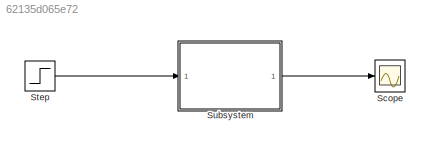
MODEL slx_62135d065e72
KIND model
CONFIG AbsTol = auto
CONFIG EnableMultiTasking = off
CONFIG FixedStep = auto
CONFIG MaxStep = auto
CONFIG MinStep = auto
CONFIG PostLoadFcn = a0=1\na1=2\na2=-1\nb1=1\nb2=-1
CONFIG RelTol = 1e-3
CONFIG SampleTimeConstraint = Unconstrained
CONFIG Solver = VariableStepAuto
CONFIG SolverName = VariableStepAuto
CONFIG StartTime = 0.0
CONFIG StopTime = 10.0
BLOCK [Scope] Scope
  Floating = off
  NumInputPorts = 1
  Ports = [1]
  ScopeSpecificationString = Simulink.scopes.TimeScopeBlockCfg('CurrentConfiguration', extmgr.ConfigurationSet(extmgr.Configuration('Core','General UI',true),extmgr.Configuration('Core','Source UI',true),extmgr.Configuration('Sources','WiredSimulink',true),extmgr.Configuration('Visuals','Time Domain',true,'SerializedDisplays',{struct('MinYLimReal','-0.5','MaxYLimReal','4.5','YLabelReal','','MinYLimMag','0.00000','MaxYLimMag',...<+1300ch>
BLOCK [Step] Step
  SampleTime = 0
BLOCK [ModelReference] Subsystem
  ModelNameDialog = Subsystem
  ModelReferenceVersion = 1.5
  Ports = [1, 1]
LINE Step:1 -> Subsystem:1
LINE Subsystem:1 -> Scope:1
